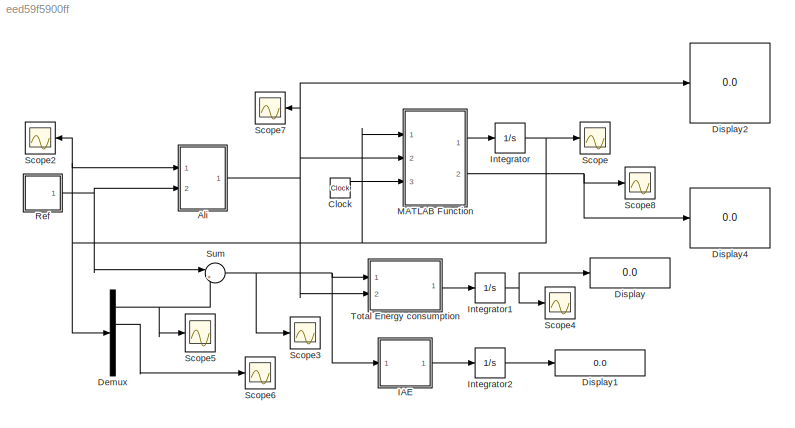
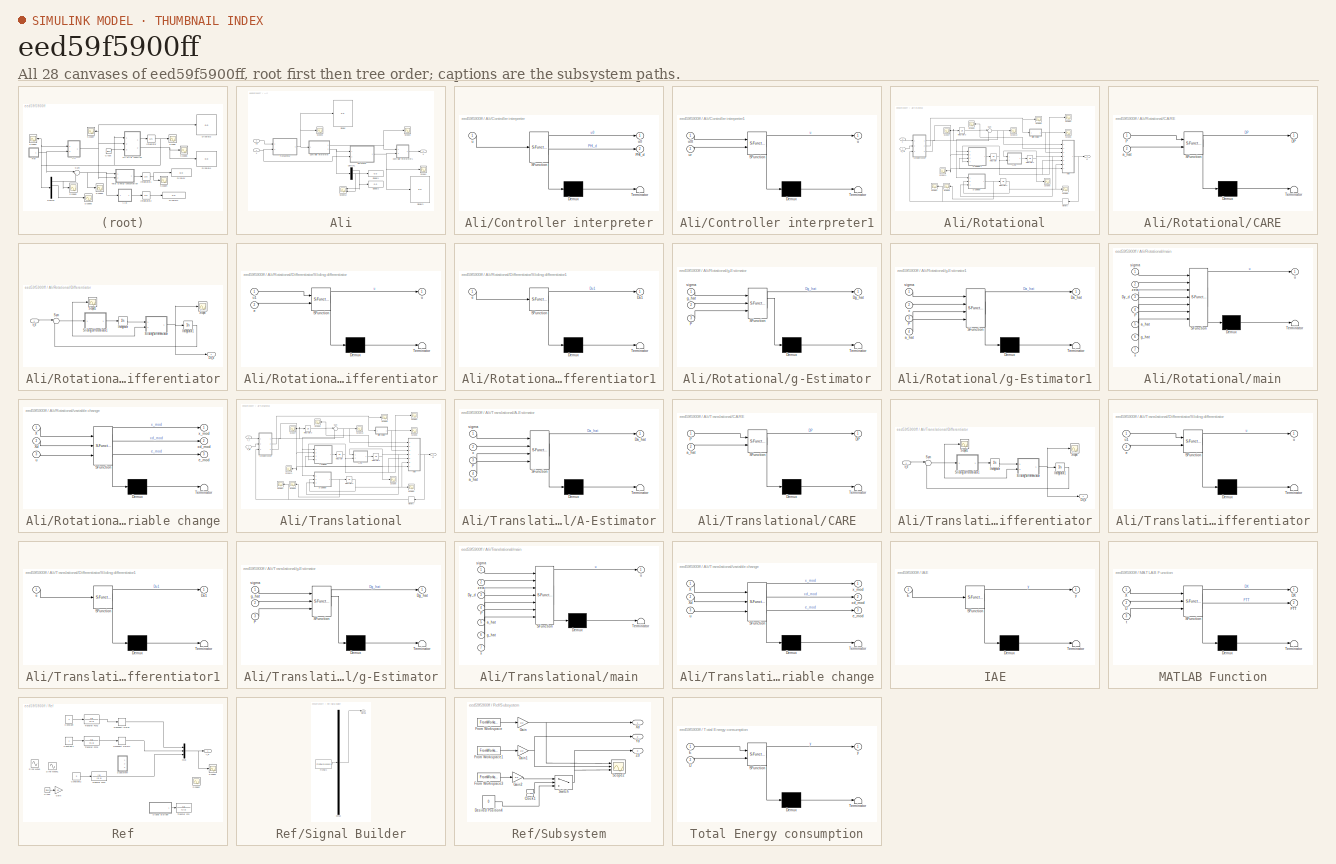
[diagram: thumbnail index - all 28 canvases of the model, root first then tree order]
MODEL slx_eed59f5900ff
KIND model
CONFIG AbsTol = auto
CONFIG EnableMultiTasking = on
CONFIG FixedStep = auto
CONFIG InitFcn = Cons_AMFC_Quad_New_01
CONFIG MaxStep = auto
CONFIG MinStep = auto
CONFIG RelTol = 1e-3
CONFIG SampleTimeConstraint = Unconstrained
CONFIG Solver = ode45
CONFIG SolverName = ode45
CONFIG StartTime = 0.0
CONFIG StopTime = 300
BLOCK [SubSystem] Ali
  Ports = [2, 1]
  RequestExecContextInheritance = off
  Variant = off
BLOCK [SubSystem] Ali/Controller interpreter
  ErrorFcn = Stateflow.Translate.translate
  PermitHierarchicalResolution = ExplicitOnly
  Ports = [1, 2]
  RequestExecContextInheritance = off
  SFBlockType = MATLAB Function
  TreatAsAtomicUnit = on
  Variant = off
BLOCK [Demux] Ali/Controller interpreter/ Demux 
  Outputs = 1
  Ports = [1, 1]
BLOCK [S-Function] Ali/Controller interpreter/ SFunction 
  EnableBusSupport = on
  FunctionName = sf_sfun
  PortCounts = [1 3]
  Ports = [1, 3]
  SFcnIsStateOwnerBlock = off
  SFunctionDeploymentMode = off
  Tag = Stateflow S-Function AMFC_Quad_New_01 10
BLOCK [Terminator] Ali/Controller interpreter/ Terminator 
BLOCK [Outport] Ali/Controller interpreter/PHI_d
  IconDisplay = Port number
  Port = 2
BLOCK [Inport] Ali/Controller interpreter/u
  IconDisplay = Port number
BLOCK [Outport] Ali/Controller interpreter/u0
  IconDisplay = Port number
BLOCK [SubSystem] Ali/Controller interpreter1
  ErrorFcn = Stateflow.Translate.translate
  PermitHierarchicalResolution = ExplicitOnly
  Ports = [2, 1]
  RequestExecContextInheritance = off
  SFBlockType = MATLAB Function
  TreatAsAtomicUnit = on
  Variant = off
BLOCK [Demux] Ali/Controller interpreter1/ Demux 
  Outputs = 1
  Ports = [1, 1]
BLOCK [S-Function] Ali/Controller interpreter1/ SFunction 
  EnableBusSupport = on
  FunctionName = sf_sfun
  Parameters = RM_1
  PortCounts = [2 2]
  Ports = [2, 2]
  SFcnIsStateOwnerBlock = off
  SFunctionDeploymentMode = off
  Tag = Stateflow S-Function AMFC_Quad_New_01 4
BLOCK [Terminator] Ali/Controller interpreter1/ Terminator 
BLOCK [Outport] Ali/Controller interpreter1/u
  IconDisplay = Port number
BLOCK [Inport] Ali/Controller interpreter1/u0t
  IconDisplay = Port number
BLOCK [Inport] Ali/Controller interpreter1/ur
  IconDisplay = Port number
  Port = 2
BLOCK [Demux] Ali/Demux1
  DisplayOption = bar
  Outputs = 3
  Ports = [1, 3]
BLOCK [Display] Ali/Display
  Decimation = 1
  Ports = [1]
BLOCK [Display] Ali/Display1
  Decimation = 1
  Ports = [1]
BLOCK [Display] Ali/Display2
  Decimation = 1
  Ports = [1]
BLOCK [Display] Ali/Display3
  Decimation = 1
  Ports = [1]
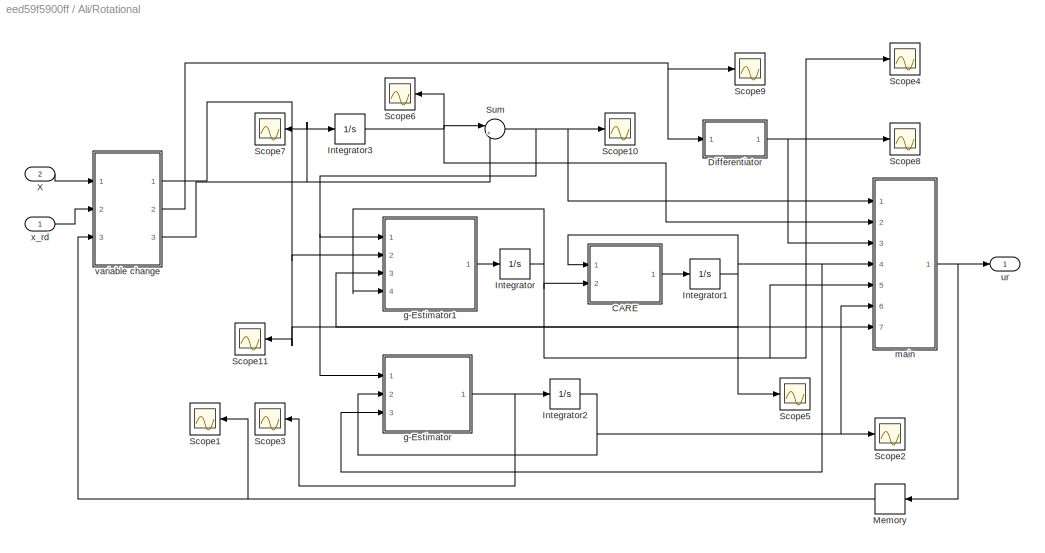
BLOCK [SubSystem] Ali/Rotational
  Ports = [2, 1]
  RequestExecContextInheritance = off
  Variant = off
BLOCK [SubSystem] Ali/Rotational/CARE
  ErrorFcn = Stateflow.Translate.translate
  PermitHierarchicalResolution = ExplicitOnly
  Ports = [2, 1]
  RequestExecContextInheritance = off
  SFBlockType = MATLAB Function
  TreatAsAtomicUnit = on
  Variant = off
BLOCK [Demux] Ali/Rotational/CARE/ Demux 
  Outputs = 1
  Ports = [1, 1]
BLOCK [S-Function] Ali/Rotational/CARE/ SFunction 
  EnableBusSupport = on
  FunctionName = sf_sfun
  Parameters = B,Q,R
  PortCounts = [2 2]
  Ports = [2, 2]
  SFcnIsStateOwnerBlock = off
  SFunctionDeploymentMode = off
  Tag = Stateflow S-Function AMFC_Quad_New_01 5
BLOCK [Terminator] Ali/Rotational/CARE/ Terminator 
BLOCK [Outport] Ali/Rotational/CARE/DP
  IconDisplay = Port number
BLOCK [Inport] Ali/Rotational/CARE/P
  IconDisplay = Port number
BLOCK [Inport] Ali/Rotational/CARE/a_hat
  IconDisplay = Port number
  Port = 2
BLOCK [SubSystem] Ali/Rotational/Differentiator
  Ports = [1, 1]
  RequestExecContextInheritance = off
  Variant = off
BLOCK [Outport] Ali/Rotational/Differentiator/Dx_d
  IconDisplay = Port number
BLOCK [Integrator] Ali/Rotational/Differentiator/Integrator
  InitialCondition = zeros(n,1)
  Ports = [1, 1]
BLOCK [Integrator] Ali/Rotational/Differentiator/Integrator1
  InitialCondition = zeros(n,1)
  Ports = [1, 1]
BLOCK [Scope] Ali/Rotational/Differentiator/Scope
  NumInputPorts = 1
  Ports = [1]
  ScopeSpecificationString = Simulink.scopes.TimeScopeBlockCfg('CurrentConfiguration', extmgr.ConfigurationSet(extmgr.Configuration('Core','General UI',true),extmgr.Configuration('Core','Source UI',true),extmgr.Configuration('Sources','WiredSimulink',true,'DataLoggingVariableName','ScopeData1','DataLoggingSaveFormat','StructureWithTime','DataLoggingDecimation','1','DataLoggingDecimateData',true),extmgr.Configuration('Visuals'...<+1989ch>
BLOCK [Scope] Ali/Rotational/Differentiator/Scope1
  NumInputPorts = 1
  Ports = [1]
  ScopeSpecificationString = C++SS(StrPVP('Location','[5, 49, 1367, 737]'),StrPVP('Open','off'),StrPVP('ZoomMode','xonly'),MxPVP('AxesTitles',53,'struct(''axes1'',''%<SignalLabel>'')'),MxPVP('ScopeGraphics',56,'struct(''FigureColor'',''[0.5 0.5 0.5]'',''AxesColor'',''[0 0 0]'',''AxesTickColor'',''[1 1 1]'',''LineColors'',''[1 1 0;1 0 1;0 1 1;1 0 0;0 1 0;0 0 1]'',''LineStyles'',''-|-|-|-|-|-'',''LineWidths'',''[0.5 0.5 0.5 0.5...<+297ch>
BLOCK [SubSystem] Ali/Rotational/Differentiator/Sliding differentiator
  ErrorFcn = Stateflow.Translate.translate
  PermitHierarchicalResolution = ExplicitOnly
  Ports = [2, 1]
  RequestExecContextInheritance = off
  SFBlockType = MATLAB Function
  TreatAsAtomicUnit = on
  Variant = off
BLOCK [Demux] Ali/Rotational/Differentiator/Sliding differentiator/ Demux 
  Outputs = 1
  Ports = [1, 1]
BLOCK [S-Function] Ali/Rotational/Differentiator/Sliding differentiator/ SFunction 
  EnableBusSupport = on
  FunctionName = sf_sfun
  Parameters = k1,n
  PortCounts = [2 2]
  Ports = [2, 2]
  SFcnIsStateOwnerBlock = off
  SFunctionDeploymentMode = off
  Tag = Stateflow S-Function AMFC_Quad_New_01 6
BLOCK [Terminator] Ali/Rotational/Differentiator/Sliding differentiator/ Terminator 
BLOCK [Inport] Ali/Rotational/Differentiator/Sliding differentiator/e
  IconDisplay = Port number
  Port = 2
BLOCK [Outport] Ali/Rotational/Differentiator/Sliding differentiator/u
  IconDisplay = Port number
BLOCK [Inport] Ali/Rotational/Differentiator/Sliding differentiator/u1
  IconDisplay = Port number
BLOCK [SubSystem] Ali/Rotational/Differentiator/Sliding differentiator1
  ErrorFcn = Stateflow.Translate.translate
  PermitHierarchicalResolution = ExplicitOnly
  Ports = [1, 1]
  RequestExecContextInheritance = off
  SFBlockType = MATLAB Function
  TreatAsAtomicUnit = on
  Variant = off
BLOCK [Demux] Ali/Rotational/Differentiator/Sliding differentiator1/ Demux 
  Outputs = 1
  Ports = [1, 1]
BLOCK [S-Function] Ali/Rotational/Differentiator/Sliding differentiator1/ SFunction 
  EnableBusSupport = on
  FunctionName = sf_sfun
  Parameters = k2,n
  PortCounts = [1 2]
  Ports = [1, 2]
  SFcnIsStateOwnerBlock = off
  SFunctionDeploymentMode = off
  Tag = Stateflow S-Function AMFC_Quad_New_01 7
BLOCK [Terminator] Ali/Rotational/Differentiator/Sliding differentiator1/ Terminator 
BLOCK [Outport] Ali/Rotational/Differentiator/Sliding differentiator1/Du1
  IconDisplay = Port number
BLOCK [Inport] Ali/Rotational/Differentiator/Sliding differentiator1/e
  IconDisplay = Port number
BLOCK [Sum] Ali/Rotational/Differentiator/Sum
  IconShape = round
  InputSameDT = off
  Inputs = |-+
  OutDataTypeStr = Inherit: Inherit via internal rule
  Ports = [2, 1]
  SaturateOnIntegerOverflow = off
BLOCK [Inport] Ali/Rotational/Differentiator/x_d
  IconDisplay = Port number
BLOCK [Integrator] Ali/Rotational/Integrator
  InitialCondition = zeros(n)
  Ports = [1, 1]
BLOCK [Integrator] Ali/Rotational/Integrator1
  InitialCondition = eye(n)
  Ports = [1, 1]
BLOCK [Integrator] Ali/Rotational/Integrator2
  InitialCondition = zeros(n,1)
  Ports = [1, 1]
BLOCK [Integrator] Ali/Rotational/Integrator3
  InitialCondition = zeros(n,1)
  Ports = [1, 1]
BLOCK [Memory] Ali/Rotational/Memory
  InitialCondition = zeros(m,1)
BLOCK [Scope] Ali/Rotational/Scope1
  NumInputPorts = 1
  Ports = [1]
  ScopeSpecificationString = Simulink.scopes.TimeScopeBlockCfg('CurrentConfiguration', extmgr.ConfigurationSet(extmgr.Configuration('Core','General UI',true),extmgr.Configuration('Core','Source UI',true),extmgr.Configuration('Sources','WiredSimulink',true,'DataLoggingVariableName','ScopeData1','DataLoggingSaveFormat','StructureWithTime','DataLoggingDecimation','1','DataLoggingDecimateData',true),extmgr.Configuration('Visuals'...<+1741ch>
BLOCK [Scope] Ali/Rotational/Scope10
  NumInputPorts = 1
  Ports = [1]
  ScopeSpecificationString = Simulink.scopes.TimeScopeBlockCfg('CurrentConfiguration', extmgr.ConfigurationSet(extmgr.Configuration('Core','General UI',true),extmgr.Configuration('Core','Source UI',true),extmgr.Configuration('Sources','WiredSimulink',true,'DataLoggingVariableName','ScopeData2','DataLoggingSaveFormat','StructureWithTime','DataLoggingDecimation','1','DataLoggingDecimateData',true),extmgr.Configuration('Visuals'...<+1736ch>
BLOCK [Scope] Ali/Rotational/Scope11
  NumInputPorts = 1
  Ports = [1]
  ScopeSpecificationString = Simulink.scopes.TimeScopeBlockCfg('CurrentConfiguration', extmgr.ConfigurationSet(extmgr.Configuration('Core','General UI',true),extmgr.Configuration('Core','Source UI',true),extmgr.Configuration('Sources','WiredSimulink',true,'DataLoggingSaveFormat','StructureWithTime','DataLoggingDecimation','1','DataLoggingDecimateData',true,'DataLoggingVariableName','ScopeData3'),extmgr.Configuration('Visuals'...<+1790ch>
BLOCK [Scope] Ali/Rotational/Scope2
  NumInputPorts = 1
  Ports = [1]
  ScopeSpecificationString = Simulink.scopes.TimeScopeBlockCfg('CurrentConfiguration', extmgr.ConfigurationSet(extmgr.Configuration('Core','General UI',true),extmgr.Configuration('Core','Source UI',true),extmgr.Configuration('Sources','WiredSimulink',true,'DataLoggingVariableName','ScopeData5','DataLoggingSaveFormat','StructureWithTime','DataLoggingDecimation','1','DataLoggingDecimateData',true),extmgr.Configuration('Visuals'...<+1847ch>
BLOCK [Scope] Ali/Rotational/Scope3
  NumInputPorts = 1
  Ports = [1]
  ScopeSpecificationString = Simulink.scopes.TimeScopeBlockCfg('CurrentConfiguration', extmgr.ConfigurationSet(extmgr.Configuration('Core','General UI',true),extmgr.Configuration('Core','Source UI',true),extmgr.Configuration('Sources','WiredSimulink',true,'DataLoggingVariableName','ScopeData6','DataLoggingSaveFormat','StructureWithTime','DataLoggingDecimation','1','DataLoggingDecimateData',true),extmgr.Configuration('Visuals'...<+1730ch>
BLOCK [Scope] Ali/Rotational/Scope4
  NumInputPorts = 1
  Ports = [1]
  ScopeSpecificationString = Simulink.scopes.TimeScopeBlockCfg('CurrentConfiguration', extmgr.ConfigurationSet(extmgr.Configuration('Core','General UI',true),extmgr.Configuration('Core','Source UI',true),extmgr.Configuration('Sources','WiredSimulink',true,'DataLoggingVariableName','ScopeData7','DataLoggingSaveFormat','StructureWithTime','DataLoggingDecimation','1','DataLoggingDecimateData',true),extmgr.Configuration('Visuals'...<+2270ch>
BLOCK [Scope] Ali/Rotational/Scope5
  NumInputPorts = 1
  Ports = [1]
  ScopeSpecificationString = Simulink.scopes.TimeScopeBlockCfg('CurrentConfiguration', extmgr.ConfigurationSet(extmgr.Configuration('Core','General UI',true),extmgr.Configuration('Core','Source UI',true),extmgr.Configuration('Sources','WiredSimulink',true,'DataLoggingVariableName','ScopeData8','DataLoggingSaveFormat','StructureWithTime','DataLoggingDecimation','1','DataLoggingDecimateData',true),extmgr.Configuration('Visuals'...<+2270ch>
BLOCK [Scope] Ali/Rotational/Scope6
  NumInputPorts = 1
  Ports = [1]
  ScopeSpecificationString = Simulink.scopes.TimeScopeBlockCfg('CurrentConfiguration', extmgr.ConfigurationSet(extmgr.Configuration('Core','General UI',true),extmgr.Configuration('Core','Source UI',true),extmgr.Configuration('Sources','WiredSimulink',true,'DataLoggingVariableName','ScopeData9','DataLoggingSaveFormat','StructureWithTime','DataLoggingDecimation','1','DataLoggingDecimateData',true),extmgr.Configuration('Visuals'...<+1800ch>
BLOCK [Scope] Ali/Rotational/Scope7
  NumInputPorts = 1
  Ports = [1]
  ScopeSpecificationString = Simulink.scopes.TimeScopeBlockCfg('CurrentConfiguration', extmgr.ConfigurationSet(extmgr.Configuration('Core','General UI',true),extmgr.Configuration('Core','Source UI',true),extmgr.Configuration('Sources','WiredSimulink',true,'DataLoggingVariableName','ScopeData10','DataLoggingSaveFormat','StructureWithTime','DataLoggingDecimation','1','DataLoggingDecimateData',true),extmgr.Configuration('Visuals...<+1837ch>
BLOCK [Scope] Ali/Rotational/Scope8
  NumInputPorts = 1
  Ports = [1]
  ScopeSpecificationString = Simulink.scopes.TimeScopeBlockCfg('CurrentConfiguration', extmgr.ConfigurationSet(extmgr.Configuration('Core','General UI',true),extmgr.Configuration('Core','Source UI',true),extmgr.Configuration('Sources','WiredSimulink',true,'DataLoggingVariableName','ScopeData11','DataLoggingSaveFormat','StructureWithTime','DataLoggingDecimation','1','DataLoggingDecimateData',true),extmgr.Configuration('Visuals...<+1793ch>
BLOCK [Scope] Ali/Rotational/Scope9
  NumInputPorts = 1
  Ports = [1]
  ScopeSpecificationString = Simulink.scopes.TimeScopeBlockCfg('CurrentConfiguration', extmgr.ConfigurationSet(extmgr.Configuration('Core','General UI',true),extmgr.Configuration('Core','Source UI',true),extmgr.Configuration('Sources','WiredSimulink',true,'DataLoggingVariableName','ScopeData12','DataLoggingSaveFormat','StructureWithTime','DataLoggingDecimation','1','DataLoggingDecimateData',true),extmgr.Configuration('Visuals...<+1841ch>
BLOCK [Sum] Ali/Rotational/Sum
  IconShape = round
  InputSameDT = off
  Inputs = |++
  OutDataTypeStr = Inherit: Inherit via internal rule
  Ports = [2, 1]
  SaturateOnIntegerOverflow = off
BLOCK [Inport] Ali/Rotational/X
  IconDisplay = Port number
  Port = 2
BLOCK [SubSystem] Ali/Rotational/g-Estimator
  ErrorFcn = Stateflow.Translate.translate
  PermitHierarchicalResolution = ExplicitOnly
  Ports = [3, 1]
  RequestExecContextInheritance = off
  SFBlockType = MATLAB Function
  TreatAsAtomicUnit = on
  Variant = off
BLOCK [Demux] Ali/Rotational/g-Estimator/ Demux 
  Outputs = 1
  Ports = [1, 1]
BLOCK [S-Function] Ali/Rotational/g-Estimator/ SFunction 
  EnableBusSupport = on
  FunctionName = sf_sfun
  Parameters = gamma_1,rho_1
  PortCounts = [3 2]
  Ports = [3, 2]
  SFcnIsStateOwnerBlock = off
  SFunctionDeploymentMode = off
  Tag = Stateflow S-Function AMFC_Quad_New_01 8
BLOCK [Terminator] Ali/Rotational/g-Estimator/ Terminator 
BLOCK [Outport] Ali/Rotational/g-Estimator/Dg_hat
  IconDisplay = Port number
BLOCK [Inport] Ali/Rotational/g-Estimator/P
  IconDisplay = Port number
  Port = 3
BLOCK [Inport] Ali/Rotational/g-Estimator/g_hat
  IconDisplay = Port number
  Port = 2
BLOCK [Inport] Ali/Rotational/g-Estimator/sigma
  IconDisplay = Port number
BLOCK [SubSystem] Ali/Rotational/g-Estimator1
  ErrorFcn = Stateflow.Translate.translate
  PermitHierarchicalResolution = ExplicitOnly
  Ports = [4, 1]
  RequestExecContextInheritance = off
  SFBlockType = MATLAB Function
  TreatAsAtomicUnit = on
  Variant = off
BLOCK [Demux] Ali/Rotational/g-Estimator1/ Demux 
  Outputs = 1
  Ports = [1, 1]
BLOCK [S-Function] Ali/Rotational/g-Estimator1/ SFunction 
  EnableBusSupport = on
  FunctionName = sf_sfun
  Parameters = gamma_0,rho_0
  PortCounts = [4 2]
  Ports = [4, 2]
  SFcnIsStateOwnerBlock = off
  SFunctionDeploymentMode = off
  Tag = Stateflow S-Function AMFC_Quad_New_01 9
BLOCK [Terminator] Ali/Rotational/g-Estimator1/ Terminator 
BLOCK [Outport] Ali/Rotational/g-Estimator1/Da_hat
  IconDisplay = Port number
BLOCK [Inport] Ali/Rotational/g-Estimator1/P
  IconDisplay = Port number
  Port = 3
BLOCK [Inport] Ali/Rotational/g-Estimator1/a_hat
  IconDisplay = Port number
  Port = 4
BLOCK [Inport] Ali/Rotational/g-Estimator1/sigma
  IconDisplay = Port number
BLOCK [Inport] Ali/Rotational/g-Estimator1/x
  IconDisplay = Port number
  Port = 2
BLOCK [SubSystem] Ali/Rotational/main
  ErrorFcn = Stateflow.Translate.translate
  PermitHierarchicalResolution = ExplicitOnly
  Ports = [7, 1]
  RequestExecContextInheritance = off
  SFBlockType = MATLAB Function
  TreatAsAtomicUnit = on
  Variant = off
BLOCK [Demux] Ali/Rotational/main/ Demux 
  Outputs = 1
  Ports = [1, 1]
BLOCK [S-Function] Ali/Rotational/main/ SFunction 
  EnableBusSupport = on
  FunctionName = sf_sfun
  Parameters = B,BBT_inv,Q,R,n
  PortCounts = [7 2]
  Ports = [7, 2]
  SFcnIsStateOwnerBlock = off
  SFunctionDeploymentMode = off
  Tag = Stateflow S-Function AMFC_Quad_New_01 11
BLOCK [Terminator] Ali/Rotational/main/ Terminator 
BLOCK [Inport] Ali/Rotational/main/Dy_d
  IconDisplay = Port number
  Port = 3
BLOCK [Inport] Ali/Rotational/main/P
  IconDisplay = Port number
  Port = 4
BLOCK [Inport] Ali/Rotational/main/a_hat
  IconDisplay = Port number
  Port = 5
BLOCK [Inport] Ali/Rotational/main/g_hat
  IconDisplay = Port number
  Port = 6
BLOCK [Inport] Ali/Rotational/main/sigma
  IconDisplay = Port number
BLOCK [Outport] Ali/Rotational/main/u
  IconDisplay = Port number
BLOCK [Inport] Ali/Rotational/main/x
  IconDisplay = Port number
  Port = 7
BLOCK [Inport] Ali/Rotational/main/zeta
  IconDisplay = Port number
  Port = 2
BLOCK [Outport] Ali/Rotational/ur
  IconDisplay = Port number
BLOCK [SubSystem] Ali/Rotational/variable change
  ErrorFcn = Stateflow.Translate.translate
  PermitHierarchicalResolution = ExplicitOnly
  Ports = [3, 3]
  RequestExecContextInheritance = off
  SFBlockType = MATLAB Function
  TreatAsAtomicUnit = on
  Variant = off
BLOCK [Demux] Ali/Rotational/variable change/ Demux 
  Outputs = 1
  Ports = [1, 1]
BLOCK [S-Function] Ali/Rotational/variable change/ SFunction 
  EnableBusSupport = on
  FunctionName = sf_sfun
  PortCounts = [3 4]
  Ports = [3, 4]
  SFcnIsStateOwnerBlock = off
  SFunctionDeploymentMode = off
  Tag = Stateflow S-Function AMFC_Quad_New_01 13
BLOCK [Terminator] Ali/Rotational/variable change/ Terminator 
BLOCK [Inport] Ali/Rotational/variable change/X
  IconDisplay = Port number
BLOCK [Inport] Ali/Rotational/variable change/Xd
  IconDisplay = Port number
  Port = 2
BLOCK [Outport] Ali/Rotational/variable change/e_mod
  IconDisplay = Port number
  Port = 3
BLOCK [Inport] Ali/Rotational/variable change/u
  IconDisplay = Port number
  Port = 3
BLOCK [Outport] Ali/Rotational/variable change/x_mod
  IconDisplay = Port number
BLOCK [Outport] Ali/Rotational/variable change/xd_mod
  IconDisplay = Port number
  Port = 2
BLOCK [Inport] Ali/Rotational/x_rd
  IconDisplay = Port number
BLOCK [Scope] Ali/Scope1
  NumInputPorts = 1
  Ports = [1]
  ScopeSpecificationString = Simulink.scopes.TimeScopeBlockCfg('CurrentConfiguration', extmgr.ConfigurationSet(extmgr.Configuration('Core','General UI',true),extmgr.Configuration('Core','Source UI',true),extmgr.Configuration('Sources','WiredSimulink',true,'DataLoggingVariableName','ScopeData13'),extmgr.Configuration('Visuals','Time Domain',true,'SerializedDisplays',{struct('MinYLimReal','-14.99342','MaxYLimReal','5.52166','YL...<+1549ch>
BLOCK [Scope] Ali/Scope12
  NumInputPorts = 2
  Ports = [2]
  ScopeSpecificationString = Simulink.scopes.TimeScopeBlockCfg('CurrentConfiguration', extmgr.ConfigurationSet(extmgr.Configuration('Core','General UI',true),extmgr.Configuration('Core','Source UI',true),extmgr.Configuration('Sources','WiredSimulink',true,'DataLoggingVariableName','ScopeData4','DataLoggingSaveFormat','StructureWithTime','DataLoggingDecimation','1','DataLoggingDecimateData',true),extmgr.Configuration('Visuals'...<+2350ch>
BLOCK [Scope] Ali/Scope2
  NumInputPorts = 1
  Ports = [1]
  ScopeSpecificationString = Simulink.scopes.TimeScopeBlockCfg('CurrentConfiguration', extmgr.ConfigurationSet(extmgr.Configuration('Core','General UI',true),extmgr.Configuration('Core','Source UI',true),extmgr.Configuration('Sources','WiredSimulink',true,'DataLoggingVariableName','ScopeData14'),extmgr.Configuration('Visuals','Time Domain',true,'SerializedDisplays',{struct('MinYLimReal','-3594970330330588269379764820635717468...<+1762ch>
BLOCK [Scope] Ali/Scope3
  NumInputPorts = 1
  Ports = [1]
  ScopeSpecificationString = Simulink.scopes.TimeScopeBlockCfg('CurrentConfiguration', extmgr.ConfigurationSet(extmgr.Configuration('Core','General UI',true),extmgr.Configuration('Core','Source UI',true),extmgr.Configuration('Sources','WiredSimulink',true,'DataLoggingVariableName','ScopeData15'),extmgr.Configuration('Visuals','Time Domain',true,'SerializedDisplays',{struct('MinYLimReal','-0.67374','MaxYLimReal','0.58904','YLa...<+1438ch>
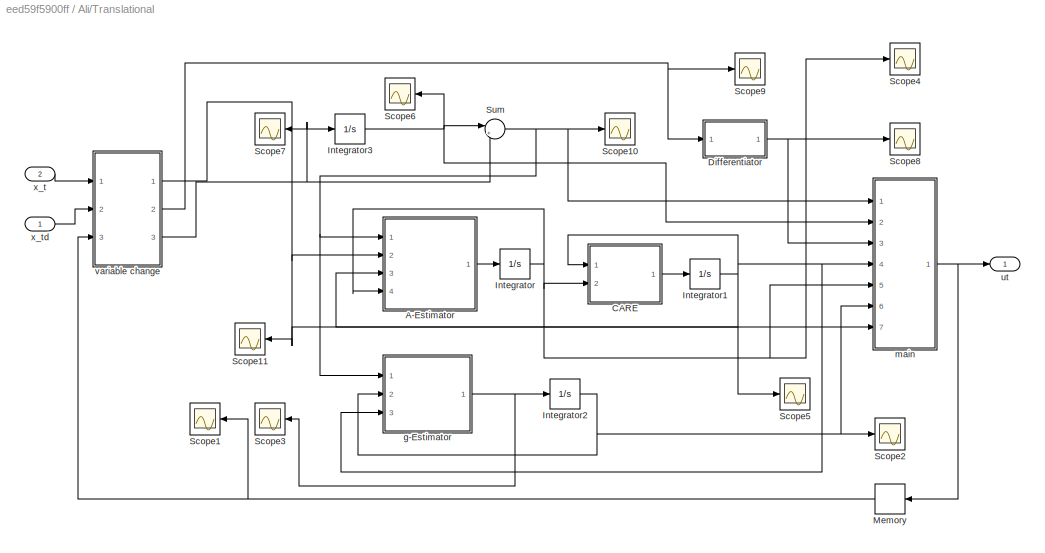
BLOCK [SubSystem] Ali/Translational
  Ports = [2, 1]
  RequestExecContextInheritance = off
  Variant = off
BLOCK [SubSystem] Ali/Translational/A-Estimator
  ErrorFcn = Stateflow.Translate.translate
  PermitHierarchicalResolution = ExplicitOnly
  Ports = [4, 1]
  RequestExecContextInheritance = off
  SFBlockType = MATLAB Function
  TreatAsAtomicUnit = on
  Variant = off
BLOCK [Demux] Ali/Translational/A-Estimator/ Demux 
  Outputs = 1
  Ports = [1, 1]
BLOCK [S-Function] Ali/Translational/A-Estimator/ SFunction 
  EnableBusSupport = on
  FunctionName = sf_sfun
  Parameters = gamma_0,rho_0
  PortCounts = [4 2]
  Ports = [4, 2]
  SFcnIsStateOwnerBlock = off
  SFunctionDeploymentMode = off
  Tag = Stateflow S-Function AMFC_Quad_New_01 25
BLOCK [Terminator] Ali/Translational/A-Estimator/ Terminator 
BLOCK [Outport] Ali/Translational/A-Estimator/Da_hat
  IconDisplay = Port number
BLOCK [Inport] Ali/Translational/A-Estimator/P
  IconDisplay = Port number
  Port = 3
BLOCK [Inport] Ali/Translational/A-Estimator/a_hat
  IconDisplay = Port number
  Port = 4
BLOCK [Inport] Ali/Translational/A-Estimator/sigma
  IconDisplay = Port number
BLOCK [Inport] Ali/Translational/A-Estimator/x
  IconDisplay = Port number
  Port = 2
BLOCK [SubSystem] Ali/Translational/CARE
  ErrorFcn = Stateflow.Translate.translate
  PermitHierarchicalResolution = ExplicitOnly
  Ports = [2, 1]
  RequestExecContextInheritance = off
  SFBlockType = MATLAB Function
  TreatAsAtomicUnit = on
  Variant = off
BLOCK [Demux] Ali/Translational/CARE/ Demux 
  Outputs = 1
  Ports = [1, 1]
BLOCK [S-Function] Ali/Translational/CARE/ SFunction 
  EnableBusSupport = on
  FunctionName = sf_sfun
  Parameters = B,Q,R
  PortCounts = [2 2]
  Ports = [2, 2]
  SFcnIsStateOwnerBlock = off
  SFunctionDeploymentMode = off
  Tag = Stateflow S-Function AMFC_Quad_New_01 20
BLOCK [Terminator] Ali/Translational/CARE/ Terminator 
BLOCK [Outport] Ali/Translational/CARE/DP
  IconDisplay = Port number
BLOCK [Inport] Ali/Translational/CARE/P
  IconDisplay = Port number
BLOCK [Inport] Ali/Translational/CARE/a_hat
  IconDisplay = Port number
  Port = 2
BLOCK [SubSystem] Ali/Translational/Differentiator
  Ports = [1, 1]
  RequestExecContextInheritance = off
  Variant = off
BLOCK [Outport] Ali/Translational/Differentiator/Dx_d
  IconDisplay = Port number
BLOCK [Integrator] Ali/Translational/Differentiator/Integrator
  InitialCondition = zeros(n,1)
  Ports = [1, 1]
BLOCK [Integrator] Ali/Translational/Differentiator/Integrator1
  InitialCondition = zeros(n,1)
  Ports = [1, 1]
BLOCK [Scope] Ali/Translational/Differentiator/Scope
  NumInputPorts = 1
  Ports = [1]
  ScopeSpecificationString = Simulink.scopes.TimeScopeBlockCfg('CurrentConfiguration', extmgr.ConfigurationSet(extmgr.Configuration('Core','General UI',true),extmgr.Configuration('Core','Source UI',true),extmgr.Configuration('Sources','WiredSimulink',true,'DataLoggingVariableName','ScopeData1','DataLoggingSaveFormat','StructureWithTime','DataLoggingDecimation','1','DataLoggingDecimateData',true),extmgr.Configuration('Visuals'...<+1989ch>
BLOCK [Scope] Ali/Translational/Differentiator/Scope1
  NumInputPorts = 1
  Ports = [1]
  ScopeSpecificationString = C++SS(StrPVP('Location','[5, 49, 1367, 737]'),StrPVP('Open','off'),StrPVP('ZoomMode','xonly'),MxPVP('AxesTitles',53,'struct(''axes1'',''%<SignalLabel>'')'),MxPVP('ScopeGraphics',56,'struct(''FigureColor'',''[0.5 0.5 0.5]'',''AxesColor'',''[0 0 0]'',''AxesTickColor'',''[1 1 1]'',''LineColors'',''[1 1 0;1 0 1;0 1 1;1 0 0;0 1 0;0 0 1]'',''LineStyles'',''-|-|-|-|-|-'',''LineWidths'',''[0.5 0.5 0.5 0.5...<+297ch>
BLOCK [SubSystem] Ali/Translational/Differentiator/Sliding differentiator
  ErrorFcn = Stateflow.Translate.translate
  PermitHierarchicalResolution = ExplicitOnly
  Ports = [2, 1]
  RequestExecContextInheritance = off
  SFBlockType = MATLAB Function
  TreatAsAtomicUnit = on
  Variant = off
BLOCK [Demux] Ali/Translational/Differentiator/Sliding differentiator/ Demux 
  Outputs = 1
  Ports = [1, 1]
BLOCK [S-Function] Ali/Translational/Differentiator/Sliding differentiator/ SFunction 
  EnableBusSupport = on
  FunctionName = sf_sfun
  Parameters = k1,n
  PortCounts = [2 2]
  Ports = [2, 2]
  SFcnIsStateOwnerBlock = off
  SFunctionDeploymentMode = off
  Tag = Stateflow S-Function AMFC_Quad_New_01 22
BLOCK [Terminator] Ali/Translational/Differentiator/Sliding differentiator/ Terminator 
BLOCK [Inport] Ali/Translational/Differentiator/Sliding differentiator/e
  IconDisplay = Port number
  Port = 2
BLOCK [Outport] Ali/Translational/Differentiator/Sliding differentiator/u
  IconDisplay = Port number
BLOCK [Inport] Ali/Translational/Differentiator/Sliding differentiator/u1
  IconDisplay = Port number
BLOCK [SubSystem] Ali/Translational/Differentiator/Sliding differentiator1
  ErrorFcn = Stateflow.Translate.translate
  PermitHierarchicalResolution = ExplicitOnly
  Ports = [1, 1]
  RequestExecContextInheritance = off
  SFBlockType = MATLAB Function
  TreatAsAtomicUnit = on
  Variant = off
BLOCK [Demux] Ali/Translational/Differentiator/Sliding differentiator1/ Demux 
  Outputs = 1
  Ports = [1, 1]
BLOCK [S-Function] Ali/Translational/Differentiator/Sliding differentiator1/ SFunction 
  EnableBusSupport = on
  FunctionName = sf_sfun
  Parameters = k2,n
  PortCounts = [1 2]
  Ports = [1, 2]
  SFcnIsStateOwnerBlock = off
  SFunctionDeploymentMode = off
  Tag = Stateflow S-Function AMFC_Quad_New_01 23
BLOCK [Terminator] Ali/Translational/Differentiator/Sliding differentiator1/ Terminator 
BLOCK [Outport] Ali/Translational/Differentiator/Sliding differentiator1/Du1
  IconDisplay = Port number
BLOCK [Inport] Ali/Translational/Differentiator/Sliding differentiator1/e
  IconDisplay = Port number
BLOCK [Sum] Ali/Translational/Differentiator/Sum
  IconShape = round
  InputSameDT = off
  Inputs = |-+
  OutDataTypeStr = Inherit: Inherit via internal rule
  Ports = [2, 1]
  SaturateOnIntegerOverflow = off
BLOCK [Inport] Ali/Translational/Differentiator/x_d
  IconDisplay = Port number
BLOCK [Integrator] Ali/Translational/Integrator
  InitialCondition = zeros(n)
  Ports = [1, 1]
BLOCK [Integrator] Ali/Translational/Integrator1
  InitialCondition = eye(n)
  Ports = [1, 1]
BLOCK [Integrator] Ali/Translational/Integrator2
  InitialCondition = zeros(n,1)
  Ports = [1, 1]
BLOCK [Integrator] Ali/Translational/Integrator3
  InitialCondition = zeros(n,1)
  Ports = [1, 1]
BLOCK [Memory] Ali/Translational/Memory
  InitialCondition = zeros(m,1)
BLOCK [Scope] Ali/Translational/Scope1
  NumInputPorts = 1
  Ports = [1]
  ScopeSpecificationString = Simulink.scopes.TimeScopeBlockCfg('CurrentConfiguration', extmgr.ConfigurationSet(extmgr.Configuration('Core','General UI',true),extmgr.Configuration('Core','Source UI',true),extmgr.Configuration('Sources','WiredSimulink',true,'DataLoggingVariableName','ScopeData1','DataLoggingSaveFormat','StructureWithTime','DataLoggingDecimation','1','DataLoggingDecimateData',true),extmgr.Configuration('Visuals'...<+1750ch>
BLOCK [Scope] Ali/Translational/Scope10
  NumInputPorts = 1
  Ports = [1]
  ScopeSpecificationString = Simulink.scopes.TimeScopeBlockCfg('CurrentConfiguration', extmgr.ConfigurationSet(extmgr.Configuration('Core','General UI',true),extmgr.Configuration('Core','Source UI',true),extmgr.Configuration('Sources','WiredSimulink',true,'DataLogging',true,'DataLoggingVariableName','ScopeData2','DataLoggingSaveFormat','StructureWithTime','DataLoggingDecimation','1','DataLoggingDecimateData',true),extmgr.Conf...<+1807ch>
BLOCK [Scope] Ali/Translational/Scope11
  NumInputPorts = 1
  Ports = [1]
  ScopeSpecificationString = Simulink.scopes.TimeScopeBlockCfg('CurrentConfiguration', extmgr.ConfigurationSet(extmgr.Configuration('Core','General UI',true),extmgr.Configuration('Core','Source UI',true),extmgr.Configuration('Sources','WiredSimulink',true,'DataLoggingSaveFormat','StructureWithTime','DataLoggingDecimation','1','DataLoggingDecimateData',true,'DataLoggingVariableName','ScopeData3'),extmgr.Configuration('Visuals'...<+875ch>
BLOCK [Scope] Ali/Translational/Scope2
  NumInputPorts = 1
  Ports = [1]
  ScopeSpecificationString = Simulink.scopes.TimeScopeBlockCfg('CurrentConfiguration', extmgr.ConfigurationSet(extmgr.Configuration('Core','General UI',true),extmgr.Configuration('Core','Source UI',true),extmgr.Configuration('Sources','WiredSimulink',true,'DataLogging',true,'DataLoggingVariableName','ScopeData5','DataLoggingSaveFormat','StructureWithTime','DataLoggingDecimation','1','DataLoggingDecimateData',true),extmgr.Conf...<+1966ch>
BLOCK [Scope] Ali/Translational/Scope3
  NumInputPorts = 1
  Ports = [1]
  ScopeSpecificationString = Simulink.scopes.TimeScopeBlockCfg('CurrentConfiguration', extmgr.ConfigurationSet(extmgr.Configuration('Core','General UI',true),extmgr.Configuration('Core','Source UI',true),extmgr.Configuration('Sources','WiredSimulink',true,'DataLoggingVariableName','ScopeData6','DataLoggingSaveFormat','StructureWithTime','DataLoggingDecimation','1','DataLoggingDecimateData',true),extmgr.Configuration('Visuals'...<+875ch>
BLOCK [Scope] Ali/Translational/Scope4
  NumInputPorts = 1
  Ports = [1]
  ScopeSpecificationString = Simulink.scopes.TimeScopeBlockCfg('CurrentConfiguration', extmgr.ConfigurationSet(extmgr.Configuration('Core','General UI',true),extmgr.Configuration('Core','Source UI',true),extmgr.Configuration('Sources','WiredSimulink',true,'DataLogging',true,'DataLoggingVariableName','ScopeData7','DataLoggingSaveFormat','StructureWithTime','DataLoggingDecimation','1','DataLoggingDecimateData',true),extmgr.Conf...<+4063ch>
BLOCK [Scope] Ali/Translational/Scope5
  NumInputPorts = 1
  Ports = [1]
  ScopeSpecificationString = Simulink.scopes.TimeScopeBlockCfg('CurrentConfiguration', extmgr.ConfigurationSet(extmgr.Configuration('Core','General UI',true),extmgr.Configuration('Core','Source UI',true),extmgr.Configuration('Sources','WiredSimulink',true,'DataLogging',true,'DataLoggingVariableName','ScopeData8','DataLoggingSaveFormat','StructureWithTime','DataLoggingDecimation','1','DataLoggingDecimateData',true),extmgr.Conf...<+4171ch>
BLOCK [Scope] Ali/Translational/Scope6
  NumInputPorts = 1
  Ports = [1]
  ScopeSpecificationString = Simulink.scopes.TimeScopeBlockCfg('CurrentConfiguration', extmgr.ConfigurationSet(extmgr.Configuration('Core','General UI',true),extmgr.Configuration('Core','Source UI',true),extmgr.Configuration('Sources','WiredSimulink',true,'DataLoggingVariableName','ScopeData9','DataLoggingSaveFormat','StructureWithTime','DataLoggingDecimation','1','DataLoggingDecimateData',true),extmgr.Configuration('Visuals'...<+1900ch>
BLOCK [Scope] Ali/Translational/Scope7
  NumInputPorts = 1
  Ports = [1]
  ScopeSpecificationString = Simulink.scopes.TimeScopeBlockCfg('CurrentConfiguration', extmgr.ConfigurationSet(extmgr.Configuration('Core','General UI',true),extmgr.Configuration('Core','Source UI',true),extmgr.Configuration('Sources','WiredSimulink',true,'DataLoggingVariableName','ScopeData10','DataLoggingSaveFormat','StructureWithTime','DataLoggingDecimation','1','DataLoggingDecimateData',true),extmgr.Configuration('Visuals...<+1997ch>
BLOCK [Scope] Ali/Translational/Scope8
  NumInputPorts = 1
  Ports = [1]
  ScopeSpecificationString = Simulink.scopes.TimeScopeBlockCfg('CurrentConfiguration', extmgr.ConfigurationSet(extmgr.Configuration('Core','General UI',true),extmgr.Configuration('Core','Source UI',true),extmgr.Configuration('Sources','WiredSimulink',true,'DataLogging',true,'DataLoggingVariableName','ScopeData11','DataLoggingSaveFormat','StructureWithTime','DataLoggingDecimation','1','DataLoggingDecimateData',true),extmgr.Con...<+1812ch>
BLOCK [Scope] Ali/Translational/Scope9
  NumInputPorts = 1
  Ports = [1]
  ScopeSpecificationString = Simulink.scopes.TimeScopeBlockCfg('CurrentConfiguration', extmgr.ConfigurationSet(extmgr.Configuration('Core','General UI',true),extmgr.Configuration('Core','Source UI',true),extmgr.Configuration('Sources','WiredSimulink',true,'DataLoggingVariableName','ScopeData12','DataLoggingSaveFormat','StructureWithTime','DataLoggingDecimation','1','DataLoggingDecimateData',true),extmgr.Configuration('Visuals...<+2007ch>
BLOCK [Sum] Ali/Translational/Sum
  IconShape = round
  InputSameDT = off
  Inputs = |++
  OutDataTypeStr = Inherit: Inherit via internal rule
  Ports = [2, 1]
  SaturateOnIntegerOverflow = off
BLOCK [SubSystem] Ali/Translational/g-Estimator
  ErrorFcn = Stateflow.Translate.translate
  PermitHierarchicalResolution = ExplicitOnly
  Ports = [3, 1]
  RequestExecContextInheritance = off
  SFBlockType = MATLAB Function
  TreatAsAtomicUnit = on
  Variant = off
BLOCK [Demux] Ali/Translational/g-Estimator/ Demux 
  Outputs = 1
  Ports = [1, 1]
BLOCK [S-Function] Ali/Translational/g-Estimator/ SFunction 
  EnableBusSupport = on
  FunctionName = sf_sfun
  Parameters = gamma_1,rho_1
  PortCounts = [3 2]
  Ports = [3, 2]
  SFcnIsStateOwnerBlock = off
  SFunctionDeploymentMode = off
  Tag = Stateflow S-Function AMFC_Quad_New_01 24
BLOCK [Terminator] Ali/Translational/g-Estimator/ Terminator 
BLOCK [Outport] Ali/Translational/g-Estimator/Dg_hat
  IconDisplay = Port number
BLOCK [Inport] Ali/Translational/g-Estimator/P
  IconDisplay = Port number
  Port = 3
BLOCK [Inport] Ali/Translational/g-Estimator/g_hat
  IconDisplay = Port number
  Port = 2
BLOCK [Inport] Ali/Translational/g-Estimator/sigma
  IconDisplay = Port number
BLOCK [SubSystem] Ali/Translational/main
  ErrorFcn = Stateflow.Translate.translate
  PermitHierarchicalResolution = ExplicitOnly
  Ports = [7, 1]
  RequestExecContextInheritance = off
  SFBlockType = MATLAB Function
  TreatAsAtomicUnit = on
  Variant = off
BLOCK [Demux] Ali/Translational/main/ Demux 
  Outputs = 1
  Ports = [1, 1]
BLOCK [S-Function] Ali/Translational/main/ SFunction 
  EnableBusSupport = on
  FunctionName = sf_sfun
  Parameters = B,BBT_inv,Q,R,n
  PortCounts = [7 2]
  Ports = [7, 2]
  SFcnIsStateOwnerBlock = off
  SFunctionDeploymentMode = off
  Tag = Stateflow S-Function AMFC_Quad_New_01 26
BLOCK [Terminator] Ali/Translational/main/ Terminator 
BLOCK [Inport] Ali/Translational/main/Dy_d
  IconDisplay = Port number
  Port = 3
BLOCK [Inport] Ali/Translational/main/P
  IconDisplay = Port number
  Port = 4
BLOCK [Inport] Ali/Translational/main/a_hat
  IconDisplay = Port number
  Port = 5
BLOCK [Inport] Ali/Translational/main/g_hat
  IconDisplay = Port number
  Port = 6
BLOCK [Inport] Ali/Translational/main/sigma
  IconDisplay = Port number
BLOCK [Outport] Ali/Translational/main/u
  IconDisplay = Port number
BLOCK [Inport] Ali/Translational/main/x
  IconDisplay = Port number
  Port = 7
BLOCK [Inport] Ali/Translational/main/zeta
  IconDisplay = Port number
  Port = 2
BLOCK [Outport] Ali/Translational/ut
  IconDisplay = Port number
BLOCK [SubSystem] Ali/Translational/variable change
  ErrorFcn = Stateflow.Translate.translate
  PermitHierarchicalResolution = ExplicitOnly
  Ports = [3, 3]
  RequestExecContextInheritance = off
  SFBlockType = MATLAB Function
  TreatAsAtomicUnit = on
  Variant = off
BLOCK [Demux] Ali/Translational/variable change/ Demux 
  Outputs = 1
  Ports = [1, 1]
BLOCK [S-Function] Ali/Translational/variable change/ SFunction 
  EnableBusSupport = on
  FunctionName = sf_sfun
  PortCounts = [3 4]
  Ports = [3, 4]
  SFcnIsStateOwnerBlock = off
  SFunctionDeploymentMode = off
  Tag = Stateflow S-Function AMFC_Quad_New_01 27
BLOCK [Terminator] Ali/Translational/variable change/ Terminator 
BLOCK [Inport] Ali/Translational/variable change/X
  IconDisplay = Port number
BLOCK [Inport] Ali/Translational/variable change/Xd
  IconDisplay = Port number
  Port = 2
BLOCK [Outport] Ali/Translational/variable change/e_mod
  IconDisplay = Port number
  Port = 3
BLOCK [Inport] Ali/Translational/variable change/u
  IconDisplay = Port number
  Port = 3
BLOCK [Outport] Ali/Translational/variable change/x_mod
  IconDisplay = Port number
BLOCK [Outport] Ali/Translational/variable change/xd_mod
  IconDisplay = Port number
  Port = 2
BLOCK [Inport] Ali/Translational/x_t
  IconDisplay = Port number
  Port = 2
BLOCK [Inport] Ali/Translational/x_td
  IconDisplay = Port number
BLOCK [Outport] Ali/u
  IconDisplay = Port number
BLOCK [Inport] Ali/x
  IconDisplay = Port number
BLOCK [Inport] Ali/xd
  IconDisplay = Port number
  Port = 2
BLOCK [Clock] Clock
BLOCK [Demux] Demux
  DisplayOption = bar
  Ports = [1, 4]
BLOCK [Display] Display
  Decimation = 1
  Ports = [1]
BLOCK [Display] Display1
  Decimation = 1
  Ports = [1]
BLOCK [Display] Display2
  Decimation = 1
  Ports = [1]
BLOCK [Display] Display4
  Decimation = 1
  Ports = [1]
BLOCK [SubSystem] IAE
  ErrorFcn = Stateflow.Translate.translate
  PermitHierarchicalResolution = ExplicitOnly
  Ports = [1, 1]
  RequestExecContextInheritance = off
  SFBlockType = MATLAB Function
  TreatAsAtomicUnit = on
  Variant = off
BLOCK [Demux] IAE/ Demux 
  Outputs = 1
  Ports = [1, 1]
BLOCK [S-Function] IAE/ SFunction 
  EnableBusSupport = on
  FunctionName = sf_sfun
  PortCounts = [1 2]
  Ports = [1, 2]
  SFcnIsStateOwnerBlock = off
  SFunctionDeploymentMode = off
  Tag = Stateflow S-Function AMFC_Quad_New_01 1
BLOCK [Terminator] IAE/ Terminator 
BLOCK [Inport] IAE/E
  IconDisplay = Port number
BLOCK [Outport] IAE/y
  IconDisplay = Port number
BLOCK [Integrator] Integrator
  InitialCondition = zeros(12,1)
  Ports = [1, 1]
BLOCK [Integrator] Integrator1
  Ports = [1, 1]
BLOCK [Integrator] Integrator2
  Ports = [1, 1]
BLOCK [SubSystem] MATLAB Function
  ErrorFcn = Stateflow.Translate.translate
  PermitHierarchicalResolution = ExplicitOnly
  Ports = [3, 2]
  RequestExecContextInheritance = off
  SFBlockType = MATLAB Function
  TreatAsAtomicUnit = on
  Variant = off
BLOCK [Demux] MATLAB Function/ Demux 
  Outputs = 1
  Ports = [1, 1]
BLOCK [S-Function] MATLAB Function/ SFunction 
  EnableBusSupport = on
  FunctionName = sf_sfun
  Parameters = J,Ka,Kd,Kf,Kt,L,M,g
  PortCounts = [3 3]
  Ports = [3, 3]
  SFcnIsStateOwnerBlock = off
  SFunctionDeploymentMode = off
  Tag = Stateflow S-Function AMFC_Quad_New_01 2
BLOCK [Terminator] MATLAB Function/ Terminator 
BLOCK [Outport] MATLAB Function/DX
  IconDisplay = Port number
BLOCK [Outport] MATLAB Function/FTT
  IconDisplay = Port number
  Port = 2
BLOCK [Inport] MATLAB Function/U
  IconDisplay = Port number
  Port = 2
BLOCK [Inport] MATLAB Function/X
  IconDisplay = Port number
BLOCK [Inport] MATLAB Function/t
  IconDisplay = Port number
  Port = 3
BLOCK [SubSystem] Ref
  Ports = [0, 1]
  RequestExecContextInheritance = off
  Variant = off
BLOCK [Clock] Ref/Clock
BLOCK [Constant] Ref/Constant
  Value = 3
BLOCK [Constant] Ref/Constant1
BLOCK [Constant] Ref/Constant2
  Value = 5
BLOCK [Gain] Ref/Gain
  Gain = 0.2
  OutDataTypeStr = Inherit: Inherit via internal rule
  ParamDataTypeStr = Inherit: Inherit via internal rule
  SaturateOnIntegerOverflow = off
BLOCK [Mux] Ref/Mux
  DisplayOption = bar
  Inputs = 3
  Ports = [3, 1]
BLOCK [Scope] Ref/Scope1
  NumInputPorts = 1
  Ports = [1]
  ScopeSpecificationString = Simulink.scopes.TimeScopeBlockCfg('CurrentConfiguration', extmgr.ConfigurationSet(extmgr.Configuration('Core','General UI',true),extmgr.Configuration('Core','Source UI',true),extmgr.Configuration('Sources','WiredSimulink',true,'DataLogging',true,'DataLoggingVariableName','Ref','DataLoggingSaveFormat','StructureWithTime','DataLoggingDecimation','1','DataLoggingDecimateData',true),extmgr.Configurati...<+1738ch>
BLOCK [Scope] Ref/Scope2
  NumInputPorts = 1
  Ports = [1]
  ScopeSpecificationString = Simulink.scopes.TimeScopeBlockCfg('CurrentConfiguration', extmgr.ConfigurationSet(extmgr.Configuration('Core','General UI',true),extmgr.Configuration('Core','Source UI',true),extmgr.Configuration('Sources','WiredSimulink',true,'DataLogging',true,'DataLoggingVariableName','Ref1','DataLoggingSaveFormat','StructureWithTime','DataLoggingDecimation','1','DataLoggingDecimateData',true),extmgr.Configurat...<+1635ch>
BLOCK [SubSystem] Ref/Signal Builder
  ClipboardFcn = sigbuilder_block('clipboard');
  CloseFcn = sigbuilder_block('close');
  ContinueFcn = sigbuilder_block('continue');
  CopyFcn = sigbuilder_block('copy');
  DeleteFcn = sigbuilder_block('delete');
  LoadFcn = sigbuilder_block('load');
  MaskHideContents = on
  ModelCloseFcn = sigbuilder_block('modelClose');
  NameChangeFcn = sigbuilder_block('namechange');
  OpenFcn = sigbuilder_block('open',[437.25 117.75 550.5 394.5 ]);
  PauseFcn = sigbuilder_block('pause');
  Ports = [0, 1]
  PreSaveFcn = sigbuilder_block('preSave');
  RequestExecContextInheritance = off
  StartFcn = sigbuilder_block('start');
  StopFcn = sigbuilder_block('stop');
  Tag = STV Subsys
  Variant = off
BLOCK [Demux] Ref/Signal Builder/Demux
  Outputs = 1
  Ports = [1, 1]
  Tag = STV Demux
BLOCK [FromWorkspace] Ref/Signal Builder/FromWs
  SampleTime = 0
  Tag = STV FromWs
  VariableName = tuvar
  ZeroCross = on
BLOCK [Outport] Ref/Signal Builder/Signal 1
  IconDisplay = Port number
  Tag = STV Outport
BLOCK [Sin] Ref/Sine Wave
  Amplitude = 10
  Bias = -10
  Frequency = 0.2
  Phase = pi/2
  Ports = [0, 1]
  SampleTime = 0
BLOCK [Sin] Ref/Sine Wave1
  Amplitude = 10
  Frequency = 0.2
  Ports = [0, 1]
  SampleTime = 0
BLOCK [SubSystem] Ref/Subsystem
  Ports = [0, 3]
  RequestExecContextInheritance = off
  Variant = off
BLOCK [Clock] Ref/Subsystem/Clock1
BLOCK [Constant] Ref/Subsystem/Desired Position4
  Value = 0
  VectorParams1D = off
BLOCK [FromWorkspace] Ref/Subsystem/From Workspace
  SampleTime = 0
  VariableName = RECT_X
  ZeroCross = on
BLOCK [FromWorkspace] Ref/Subsystem/From Workspace1
  SampleTime = 0
  VariableName = RECT_Y
  ZeroCross = on
BLOCK [FromWorkspace] Ref/Subsystem/From Workspace3
  SampleTime = 0
  VariableName = RECT_Z
  ZeroCross = on
BLOCK [Gain] Ref/Subsystem/Gain
  Gain = 1/2
  OutDataTypeStr = Inherit: Inherit via internal rule
  ParamDataTypeStr = Inherit: Inherit via internal rule
  SaturateOnIntegerOverflow = off
BLOCK [Gain] Ref/Subsystem/Gain1
  Gain = 1/2
  OutDataTypeStr = Inherit: Inherit via internal rule
  ParamDataTypeStr = Inherit: Inherit via internal rule
  SaturateOnIntegerOverflow = off
BLOCK [Gain] Ref/Subsystem/Gain2
  Gain = 1/2
  OutDataTypeStr = Inherit: Inherit via internal rule
  ParamDataTypeStr = Inherit: Inherit via internal rule
  SaturateOnIntegerOverflow = off
BLOCK [Scope] Ref/Subsystem/Scope2
  NumInputPorts = 3
  Ports = [3]
  ScopeSpecificationString = C++SS(StrPVP('Location','[6, 49, 1360, 737]'),StrPVP('Open','off'),MxPVP('AxesTitles',53,'struct(''axes1'',''%<SignalLabel>'',''axes2'',''%<SignalLabel>'',''axes3'',''%<SignalLabel>'')'),MxPVP('ScopeGraphics',56,'struct(''FigureColor'',''[0.5 0.5 0.5]'',''AxesColor'',''[0 0 0]'',''AxesTickColor'',''[1 1 1]'',''LineColors'',''[1 1 0;1 0 1;0 1 1;1 0 0;0 1 0;0 0 1]'',''LineStyles'',''-|-|-|-|-|-'',''...<+410ch>
BLOCK [Switch] Ref/Subsystem/Switch
  Criteria = u2 > Threshold
  InputSameDT = off
  SaturateOnIntegerOverflow = off
  Threshold = 10
BLOCK [Outport] Ref/Subsystem/Xd
  IconDisplay = Port number
BLOCK [Outport] Ref/Subsystem/Yd
  IconDisplay = Port number
  Port = 2
BLOCK [Outport] Ref/Subsystem/Zd
  IconDisplay = Port number
  Port = 3
BLOCK [TransferFcn] Ref/Transfer Fcn
  Denominator = [2 1]
BLOCK [TransferFcn] Ref/Transfer Fcn1
  Denominator = [5 1]
BLOCK [TransferFcn] Ref/Transfer Fcn2
  Denominator = [5 1]
BLOCK [TransferFcn] Ref/Transfer Fcn3
  Denominator = [5 1]
BLOCK [TransportDelay] Ref/Transport Delay
  DelayTime = 20
  Ports = [1, 1]
BLOCK [TransportDelay] Ref/Transport Delay1
  DelayTime = 20
  Ports = [1, 1]
BLOCK [Outport] Ref/y_d
  IconDisplay = Port number
BLOCK [Scope] Scope
  NumInputPorts = 1
  Ports = [1]
  ScopeSpecificationString = Simulink.scopes.TimeScopeBlockCfg('CurrentConfiguration', extmgr.ConfigurationSet(extmgr.Configuration('Core','General UI',true),extmgr.Configuration('Core','Source UI',true),extmgr.Configuration('Sources','WiredSimulink',true,'DataLogging',true,'DataLoggingVariableName','X','DataLoggingSaveFormat','StructureWithTime','DataLoggingDecimation','1','DataLoggingDecimateData',true),extmgr.Configuration...<+1872ch>
BLOCK [Scope] Scope2
  NumInputPorts = 1
  Ports = [1]
  ScopeSpecificationString = Simulink.scopes.TimeScopeBlockCfg('CurrentConfiguration', extmgr.ConfigurationSet(extmgr.Configuration('Core','General UI',true),extmgr.Configuration('Core','Source UI',true),extmgr.Configuration('Sources','WiredSimulink',true,'DataLoggingVariableName','e','DataLoggingSaveFormat','StructureWithTime','DataLoggingDecimation','1','DataLoggingDecimateData',true),extmgr.Configuration('Visuals','Time Do...<+1859ch>
BLOCK [Scope] Scope3
  NumInputPorts = 1
  Ports = [1]
  ScopeSpecificationString = Simulink.scopes.TimeScopeBlockCfg('CurrentConfiguration', extmgr.ConfigurationSet(extmgr.Configuration('Core','General UI',true),extmgr.Configuration('Core','Source UI',true),extmgr.Configuration('Sources','WiredSimulink',true,'DataLogging',true,'DataLoggingVariableName','e','DataLoggingSaveFormat','StructureWithTime','DataLoggingDecimation','1','DataLoggingDecimateData',true),extmgr.Configuration...<+1712ch>
BLOCK [Scope] Scope4
  NumInputPorts = 1
  Ports = [1]
  ScopeSpecificationString = Simulink.scopes.TimeScopeBlockCfg('CurrentConfiguration', extmgr.ConfigurationSet(extmgr.Configuration('Core','General UI',true),extmgr.Configuration('Core','Source UI',true),extmgr.Configuration('Sources','WiredSimulink',true,'DataLoggingVariableName','u1','DataLoggingSaveFormat','StructureWithTime','DataLoggingDecimation','1','DataLoggingDecimateData',true),extmgr.Configuration('Visuals','Time D...<+1694ch>
BLOCK [Scope] Scope5
  NumInputPorts = 1
  Ports = [1]
  ScopeSpecificationString = Simulink.scopes.TimeScopeBlockCfg('CurrentConfiguration', extmgr.ConfigurationSet(extmgr.Configuration('Core','General UI',true),extmgr.Configuration('Core','Source UI',true),extmgr.Configuration('Sources','WiredSimulink',true,'DataLogging',true,'DataLoggingVariableName','Pos','DataLoggingSaveFormat','StructureWithTime','DataLoggingDecimation','1','DataLoggingDecimateData',true),extmgr.Configurati...<+1802ch>
BLOCK [Scope] Scope6
  NumInputPorts = 1
  Ports = [1]
  ScopeSpecificationString = Simulink.scopes.TimeScopeBlockCfg('CurrentConfiguration', extmgr.ConfigurationSet(extmgr.Configuration('Core','General UI',true),extmgr.Configuration('Core','Source UI',true),extmgr.Configuration('Sources','WiredSimulink',true,'DataLogging',true,'DataLoggingVariableName','e1','DataLoggingSaveFormat','StructureWithTime','DataLoggingDecimation','1','DataLoggingDecimateData',true),extmgr.Configuratio...<+1725ch>
BLOCK [Scope] Scope7
  NumInputPorts = 1
  Ports = [1]
  ScopeSpecificationString = Simulink.scopes.TimeScopeBlockCfg('CurrentConfiguration', extmgr.ConfigurationSet(extmgr.Configuration('Core','General UI',true),extmgr.Configuration('Core','Source UI',true),extmgr.Configuration('Sources','WiredSimulink',true,'DataLogging',true,'DataLoggingVariableName','U','DataLoggingSaveFormat','StructureWithTime','DataLoggingDecimation','1','DataLoggingDecimateData',true),extmgr.Configuration...<+1738ch>
BLOCK [Scope] Scope8
  NumInputPorts = 1
  Ports = [1]
  ScopeSpecificationString = Simulink.scopes.TimeScopeBlockCfg('CurrentConfiguration', extmgr.ConfigurationSet(extmgr.Configuration('Core','General UI',true),extmgr.Configuration('Core','Source UI',true),extmgr.Configuration('Sources','WiredSimulink',true,'DataLogging',true,'DataLoggingVariableName','X1','DataLoggingSaveFormat','StructureWithTime','DataLoggingDecimation','1','DataLoggingDecimateData',true),extmgr.Configuratio...<+1765ch>
BLOCK [Sum] Sum
  IconShape = round
  InputSameDT = off
  Inputs = |+-
  OutDataTypeStr = Inherit: Inherit via internal rule
  Ports = [2, 1]
  SaturateOnIntegerOverflow = off
BLOCK [SubSystem] Total Energy consumption
  ErrorFcn = Stateflow.Translate.translate
  PermitHierarchicalResolution = ExplicitOnly
  Ports = [2, 1]
  RequestExecContextInheritance = off
  SFBlockType = MATLAB Function
  TreatAsAtomicUnit = on
  Variant = off
BLOCK [Demux] Total Energy consumption/ Demux 
  Outputs = 1
  Ports = [1, 1]
BLOCK [S-Function] Total Energy consumption/ SFunction 
  EnableBusSupport = on
  FunctionName = sf_sfun
  PortCounts = [2 2]
  Ports = [2, 2]
  SFcnIsStateOwnerBlock = off
  SFunctionDeploymentMode = off
  Tag = Stateflow S-Function AMFC_Quad_New_01 12
BLOCK [Terminator] Total Energy consumption/ Terminator 
BLOCK [Inport] Total Energy consumption/E
  IconDisplay = Port number
BLOCK [Inport] Total Energy consumption/U
  IconDisplay = Port number
  Port = 2
BLOCK [Outport] Total Energy consumption/y
  IconDisplay = Port number
LINE Ali/Controller interpreter1:1 -> Ali/u:1
NET Ali/Controller interpreter:1 -> Ali/Controller interpreter1:1, Ali/Scope2:1
NET Ali/Controller interpreter:2 -> Ali/Demux1:1, Ali/Rotational:1
NET Ali/Demux1:1 -> Ali/Display2:1, Ali/Scope12:1
NET Ali/Demux1:2 -> Ali/Display1:1, Ali/Scope12:2
LINE Ali/Rotational/CARE:1 -> Ali/Rotational/Integrator1:1
LINE Ali/Rotational/Differentiator/Integrator1:1 -> Ali/Rotational/Differentiator/Sum:2
LINE Ali/Rotational/Differentiator/Integrator:1 -> Ali/Rotational/Differentiator/Sliding differentiator:1
LINE Ali/Rotational/Differentiator/Sliding differentiator1:1 -> Ali/Rotational/Differentiator/Integrator:1
NET Ali/Rotational/Differentiator/Sliding differentiator:1 -> Ali/Rotational/Differentiator/Dx_d:1, Ali/Rotational/Differentiator/Integrator1:1, Ali/Rotational/Differentiator/Scope:1
NET Ali/Rotational/Differentiator/Sum:1 -> Ali/Rotational/Differentiator/Scope1:1, Ali/Rotational/Differentiator/Sliding differentiator1:1, Ali/Rotational/Differentiator/Sliding differentiator:2
LINE Ali/Rotational/Differentiator/x_d:1 -> Ali/Rotational/Differentiator/Sum:1
NET Ali/Rotational/Differentiator:1 -> Ali/Rotational/Scope8:1, Ali/Rotational/main:3
NET Ali/Rotational/Integrator1:1 -> Ali/Rotational/CARE:1, Ali/Rotational/Scope5:1, Ali/Rotational/g-Estimator1:3, Ali/Rotational/g-Estimator:3, Ali/Rotational/main:4
NET Ali/Rotational/Integrator2:1 -> Ali/Rotational/Scope2:1, Ali/Rotational/g-Estimator:2, Ali/Rotational/main:6
NET Ali/Rotational/Integrator3:1 -> Ali/Rotational/Scope6:1, Ali/Rotational/Sum:1, Ali/Rotational/main:2
NET Ali/Rotational/Integrator:1 -> Ali/Rotational/CARE:2, Ali/Rotational/Scope4:1, Ali/Rotational/g-Estimator1:4, Ali/Rotational/main:5
NET Ali/Rotational/Memory:1 -> Ali/Rotational/Scope1:1, Ali/Rotational/variable change:3
NET Ali/Rotational/Sum:1 -> Ali/Rotational/Scope10:1, Ali/Rotational/g-Estimator1:1, Ali/Rotational/g-Estimator:1, Ali/Rotational/main:1
LINE Ali/Rotational/X:1 -> Ali/Rotational/variable change:1
LINE Ali/Rotational/g-Estimator1:1 -> Ali/Rotational/Integrator:1
NET Ali/Rotational/g-Estimator:1 -> Ali/Rotational/Integrator2:1, Ali/Rotational/Scope3:1
NET Ali/Rotational/main:1 -> Ali/Rotational/Memory:1, Ali/Rotational/ur:1
NET Ali/Rotational/variable change:1 -> Ali/Rotational/Scope11:1, Ali/Rotational/g-Estimator1:2, Ali/Rotational/main:7
NET Ali/Rotational/variable change:2 -> Ali/Rotational/Differentiator:1, Ali/Rotational/Scope9:1
NET Ali/Rotational/variable change:3 -> Ali/Rotational/Integrator3:1, Ali/Rotational/Scope7:1, Ali/Rotational/Sum:2
LINE Ali/Rotational/x_rd:1 -> Ali/Rotational/variable change:2
NET Ali/Rotational:1 -> Ali/Controller interpreter1:2, Ali/Display3:1, Ali/Scope1:1
LINE Ali/Translational/A-Estimator:1 -> Ali/Translational/Integrator:1
LINE Ali/Translational/CARE:1 -> Ali/Translational/Integrator1:1
LINE Ali/Translational/Differentiator/Integrator1:1 -> Ali/Translational/Differentiator/Sum:2
LINE Ali/Translational/Differentiator/Integrator:1 -> Ali/Translational/Differentiator/Sliding differentiator:1
LINE Ali/Translational/Differentiator/Sliding differentiator1:1 -> Ali/Translational/Differentiator/Integrator:1
NET Ali/Translational/Differentiator/Sliding differentiator:1 -> Ali/Translational/Differentiator/Dx_d:1, Ali/Translational/Differentiator/Integrator1:1, Ali/Translational/Differentiator/Scope:1
NET Ali/Translational/Differentiator/Sum:1 -> Ali/Translational/Differentiator/Scope1:1, Ali/Translational/Differentiator/Sliding differentiator1:1, Ali/Translational/Differentiator/Sliding differentiator:2
LINE Ali/Translational/Differentiator/x_d:1 -> Ali/Translational/Differentiator/Sum:1
NET Ali/Translational/Differentiator:1 -> Ali/Translational/Scope8:1, Ali/Translational/main:3
NET Ali/Translational/Integrator1:1 -> Ali/Translational/A-Estimator:3, Ali/Translational/CARE:1, Ali/Translational/Scope5:1, Ali/Translational/g-Estimator:3, Ali/Translational/main:4
NET Ali/Translational/Integrator2:1 -> Ali/Translational/Scope2:1, Ali/Translational/g-Estimator:2, Ali/Translational/main:6
NET Ali/Translational/Integrator3:1 -> Ali/Translational/Scope6:1, Ali/Translational/Sum:1, Ali/Translational/main:2
NET Ali/Translational/Integrator:1 -> Ali/Translational/A-Estimator:4, Ali/Translational/CARE:2, Ali/Translational/Scope4:1, Ali/Translational/main:5
NET Ali/Translational/Memory:1 -> Ali/Translational/Scope1:1, Ali/Translational/variable change:3
NET Ali/Translational/Sum:1 -> Ali/Translational/A-Estimator:1, Ali/Translational/Scope10:1, Ali/Translational/g-Estimator:1, Ali/Translational/main:1
NET Ali/Translational/g-Estimator:1 -> Ali/Translational/Integrator2:1, Ali/Translational/Scope3:1
NET Ali/Translational/main:1 -> Ali/Translational/Memory:1, Ali/Translational/ut:1
NET Ali/Translational/variable change:1 -> Ali/Translational/A-Estimator:2, Ali/Translational/Scope11:1, Ali/Translational/main:7
NET Ali/Translational/variable change:2 -> Ali/Translational/Differentiator:1, Ali/Translational/Scope9:1
NET Ali/Translational/variable change:3 -> Ali/Translational/Integrator3:1, Ali/Translational/Scope7:1, Ali/Translational/Sum:2
LINE Ali/Translational/x_t:1 -> Ali/Translational/variable change:1
LINE Ali/Translational/x_td:1 -> Ali/Translational/variable change:2
NET Ali/Translational:1 -> Ali/Controller interpreter:1, Ali/Display:1, Ali/Scope3:1
NET Ali/x:1 -> Ali/Rotational:2, Ali/Translational:2
LINE Ali/xd:1 -> Ali/Translational:1
NET Ali:1 -> Display2:1, MATLAB Function:2, Scope7:1, Total Energy consumption:2
LINE Clock:1 -> MATLAB Function:3
NET Demux:1 -> Scope5:1, Sum:2
LINE Demux:2 -> Scope6:1
LINE IAE:1 -> Integrator2:1
NET Integrator1:1 -> Display:1, Scope4:1
LINE Integrator2:1 -> Display1:1
NET Integrator:1 -> Ali:1, Demux:1, MATLAB Function:1, Scope2:1, Scope:1
LINE MATLAB Function:1 -> Integrator:1
NET MATLAB Function:2 -> Display4:1, Scope8:1
LINE Ref/Clock:1 -> Ref/Gain:1
LINE Ref/Constant1:1 -> Ref/Transfer Fcn3:1
LINE Ref/Constant2:1 -> Ref/Transfer Fcn1:1
LINE Ref/Constant:1 -> Ref/Transfer Fcn2:1
NET Ref/Mux:1 -> Ref/Scope1:1, Ref/y_d:1
LINE Ref/Signal Builder:1 -> Ref/Transfer Fcn:1
LINE Ref/Subsystem/Clock1:1 -> Ref/Subsystem/Switch:2
LINE Ref/Subsystem/Desired Position4:1 -> Ref/Subsystem/Switch:3
LINE Ref/Subsystem/From Workspace1:1 -> Ref/Subsystem/Gain1:1
LINE Ref/Subsystem/From Workspace3:1 -> Ref/Subsystem/Gain2:1
LINE Ref/Subsystem/From Workspace:1 -> Ref/Subsystem/Gain:1
NET Ref/Subsystem/Gain1:1 -> Ref/Subsystem/Scope2:2, Ref/Subsystem/Yd:1
LINE Ref/Subsystem/Gain2:1 -> Ref/Subsystem/Switch:1
NET Ref/Subsystem/Gain:1 -> Ref/Subsystem/Scope2:1, Ref/Subsystem/Xd:1
NET Ref/Subsystem/Switch:1 -> Ref/Subsystem/Scope2:3, Ref/Subsystem/Zd:1
LINE Ref/Transfer Fcn1:1 -> Ref/Mux:3
LINE Ref/Transfer Fcn2:1 -> Ref/Transport Delay:1
LINE Ref/Transfer Fcn3:1 -> Ref/Transport Delay1:1
LINE Ref/Transport Delay1:1 -> Ref/Mux:2
LINE Ref/Transport Delay:1 -> Ref/Mux:1
NET Ref:1 -> Ali:2, Sum:1
NET Sum:1 -> IAE:1, Scope3:1, Total Energy consumption:1
LINE Total Energy consumption:1 -> Integrator1:1
note: NET lines group one-source signal fan-out (src -> all destinations, sorted); 1:1 wires keep LINE
CHART IAE states=1 transitions=1
  STATE_LABEL 'eML_blk_kernel()'
  STATE_LABEL "SCRIPT:\nfunction y = fcn(E)\n\nEa = abs(E(1:3));\n% Qa = 1*eye(3);\ny = sum(Ea); %Ea' * Qa * Ea;\n\nend"
CHART MATLAB Function states=1 transitions=1
  STATE_LABEL 'eML_blk_kernel()'
  STATE_LABEL 'SCRIPT:\nfunction [DX,FTT] = fcn(X,U,t,Kf,Kt,Kd,Ka,M,J,L,g)\n\nphi = X(4);\ntheta = X(5);\npsi = X(6);\n\nRq = [cos(psi)*cos(theta) -sin(psi)*cos(phi)+cos(psi)*sin(theta)*sin(phi) sin(psi)*sin(phi)+cos(psi)*sin(theta)*cos(phi);\n    sin(psi)*cos(theta) cos(psi)*cos(phi)+sin(psi)*sin(theta)*sin(phi) -cos(psi)*sin(phi)+sin(psi)*sin(theta)*cos(phi);\n    -sin(theta) cos(theta)*sin(phi) cos(theta)*cos(phi)]; \n...<+685ch>'
CHART Ali/Controller interpreter1 states=1 transitions=1
  STATE_LABEL 'eML_blk_kernel()'
  STATE_LABEL 'SCRIPT:\nfunction u = fcn(u0t,ur,RM_1)\n\ny1 = ur(4);\ny2 = ur(5);\ny3 = ur(6);\n\nY = [u0t;y1;y2;y3];\n\nu = RM_1*Y;\n \nfor i=1:4\n    u(i) = sqrt(abs(u(i)));\nend\n\nend'
CHART Ali/Rotational/CARE states=1 transitions=1
  STATE_LABEL 'eML_blk_kernel()'
  STATE_LABEL "SCRIPT:\nfunction DP = fcn(P,a_hat,B,R,Q)\n\nDP = a_hat*P + P*a_hat' - P*B*R*B'*P + 2*Q;\n\nend\n"
CHART Ali/Rotational/Differentiator/Sliding differentiator states=1 transitions=1
  STATE_LABEL 'eML_blk_kernel()'
  STATE_LABEL 'SCRIPT:\nfunction u = fcn(u1,e,n,k1)\n\nb=k1;\n\nABS = zeros(n,1);\nfor i=1:n\n    if e(i)>0\n        ABS(i) = e(i);\n    else\n        ABS(i) = -e(i);\n    end\nend\nSGN = e ./ (ABS + 0.01);\n\nu = u1 - b*(ABS.^0.5).*SGN;\n\nend\n'
CHART Ali/Rotational/Differentiator/Sliding differentiator1 states=1 transitions=1
  STATE_LABEL 'eML_blk_kernel()'
  STATE_LABEL 'SCRIPT:\nfunction Du1 = fcn(e,n,k2)\n\na=k2;\n\nABS = zeros(n,1);\nfor i=1:n\n    if e(i)>0\n        ABS(i) = e(i);\n    else\n        ABS(i) = -e(i);\n    end\nend\nSGN = e ./ (ABS + 0.01);\n\nDu1 = - a*SGN;\n\nend\n'
CHART Ali/Rotational/g-Estimator states=1 transitions=1
  STATE_LABEL 'eML_blk_kernel()'
  STATE_LABEL 'SCRIPT:\nfunction Dg_hat = fcn(sigma,g_hat,P,rho_1,gamma_1)\n\nDg_hat = - gamma_1 * P * sigma - rho_1 * gamma_1 * g_hat;\n\nend\n'
CHART Ali/Rotational/g-Estimator1 states=1 transitions=1
  STATE_LABEL 'eML_blk_kernel()'
  STATE_LABEL 'SCRIPT:\nfunction Da_hat = fcn(sigma,x,P,rho_0,gamma_0,a_hat)\n\nDVa_hat = - gamma_0 * P * diag(sigma) * (x - sigma) - rho_0 * gamma_0 * diag(a_hat);\n\nDa_hat = diag(DVa_hat);\n\nend\n'
CHART Ali/Controller interpreter states=1 transitions=1
  STATE_LABEL 'eML_blk_kernel()'
  STATE_LABEL 'SCRIPT:\nfunction [u0,PHI_d] = fcn(u)\n\nu0 = sqrt((u(4)^2)+(u(5)^2)+(u(6)^2));\n\npsi_d = 0;\nphi_d = asin( min(max(((sin(psi_d)*u(4) - cos(psi_d)*u(5)) / (u0+1e-3)),-1),1) );\ntheta_d = atan( (cos(psi_d)*u(4) + sin(psi_d)*u(5)) / (u(6)+1e-3) );\n\nPHI_d = [phi_d;theta_d;psi_d]; \n\nend'
CHART Ali/Rotational/main states=1 transitions=1
  STATE_LABEL 'eML_blk_kernel()'
  STATE_LABEL "SCRIPT:\nfunction u = fcn(sigma,zeta,Dy_d,R,P,a_hat,B,g_hat,x,Q,BBT_inv,n)\n\nu1 = (1/2) * R * B' * P * sigma;\nu2 = BBT_inv * (Dy_d - a_hat*x + (eye(n) + 2*(((P)^(-1)*Q)) + a_hat)*sigma - g_hat - zeta) - (3/4) * R * B' * P * sigma;\n\nu = u1 + u2;\n\nend\n"
CHART Total Energy consumption states=1 transitions=1
  STATE_LABEL 'eML_blk_kernel()'
  STATE_LABEL "SCRIPT:\nfunction y = fcn(E,U)\n\nEp = E(1:3);\nUp = U(1:4);\nQe = 1*eye(3);\nRe = 1*eye(4);\ny = Ep' * Qe * Ep + Up' * Re * Up;\n\nend"
CHART Ali/Rotational/variable change states=1 transitions=1
  STATE_LABEL 'eML_blk_kernel()'
  STATE_LABEL 'SCRIPT:\nfunction [x_mod,xd_mod,e_mod] = fcn(X,Xd,u)\n\nx_mod = [X(4:6);X(10:12)];\n\nxd_mod = [Xd;u(1:3)];\n\ne_mod = xd_mod - x_mod;\n\n\nend\n'
CHART Ali/Translational/CARE states=1 transitions=1
  STATE_LABEL 'eML_blk_kernel()'
  STATE_LABEL "SCRIPT:\nfunction DP = fcn(P,a_hat,B,R,Q)\n\nDP = a_hat*P + P*a_hat' - P*B*R*B'*P + 2*Q;\n\nend\n"
CHART Ali/Translational/Differentiator/Sliding differentiator states=1 transitions=1
  STATE_LABEL 'eML_blk_kernel()'
  STATE_LABEL 'SCRIPT:\nfunction u = fcn(u1,e,n,k1)\n\nb=k1;\n\nABS = zeros(n,1);\nfor i=1:n\n    if e(i)>0\n        ABS(i) = e(i);\n    else\n        ABS(i) = -e(i);\n    end\nend\nSGN = e ./ (ABS + 0.01);\n\nu = u1 - b*(ABS.^0.5).*SGN;\n\nend\n'
CHART Ali/Translational/Differentiator/Sliding differentiator1 states=1 transitions=1
  STATE_LABEL 'eML_blk_kernel()'
  STATE_LABEL 'SCRIPT:\nfunction Du1 = fcn(e,n,k2)\n\na=k2;\n\nABS = zeros(n,1);\nfor i=1:n\n    if e(i)>0\n        ABS(i) = e(i);\n    else\n        ABS(i) = -e(i);\n    end\nend\nSGN = e ./ (ABS + 0.01);\n\nDu1 = - a*SGN;\n\nend\n'
CHART Ali/Translational/g-Estimator states=1 transitions=1
  STATE_LABEL 'eML_blk_kernel()'
  STATE_LABEL 'SCRIPT:\nfunction Dg_hat = fcn(sigma,g_hat,P,rho_1,gamma_1)\n\nDg_hat = - gamma_1 * P * sigma - rho_1 * gamma_1 * g_hat;\n\nend\n'
CHART Ali/Translational/A-Estimator states=1 transitions=1
  STATE_LABEL 'eML_blk_kernel()'
  STATE_LABEL 'SCRIPT:\nfunction Da_hat = fcn(sigma,x,P,rho_0,gamma_0,a_hat)\n\nDVa_hat = - gamma_0 * P * diag(sigma) * (x - sigma) - rho_0 * gamma_0 * diag(a_hat);\n\nDa_hat = diag(DVa_hat);\n\nend\n'
CHART Ali/Translational/main states=1 transitions=1
  STATE_LABEL 'eML_blk_kernel()'
  STATE_LABEL "SCRIPT:\nfunction u = fcn(sigma,zeta,Dy_d,R,P,a_hat,B,g_hat,x,Q,BBT_inv,n)\n\nu1 = (1/2) * R * B' * P * sigma;\nu2 = BBT_inv * (Dy_d - a_hat*x + (eye(n) + 2*(((P)^(-1)*Q)) + a_hat)*sigma - g_hat - zeta) - (3/4) * R * B' * P * sigma;\n\nu = u1 + u2;\n\nend\n"
CHART Ali/Translational/variable change states=1 transitions=1
  STATE_LABEL 'eML_blk_kernel()'
  STATE_LABEL 'SCRIPT:\nfunction [x_mod,xd_mod,e_mod] = fcn(X,Xd,u)\n\nx_mod = [X(1:3);X(7:9)];\n\nxd_mod = [Xd;u(1:3)];\n\ne_mod = xd_mod - x_mod;\n\n\nend\n'
